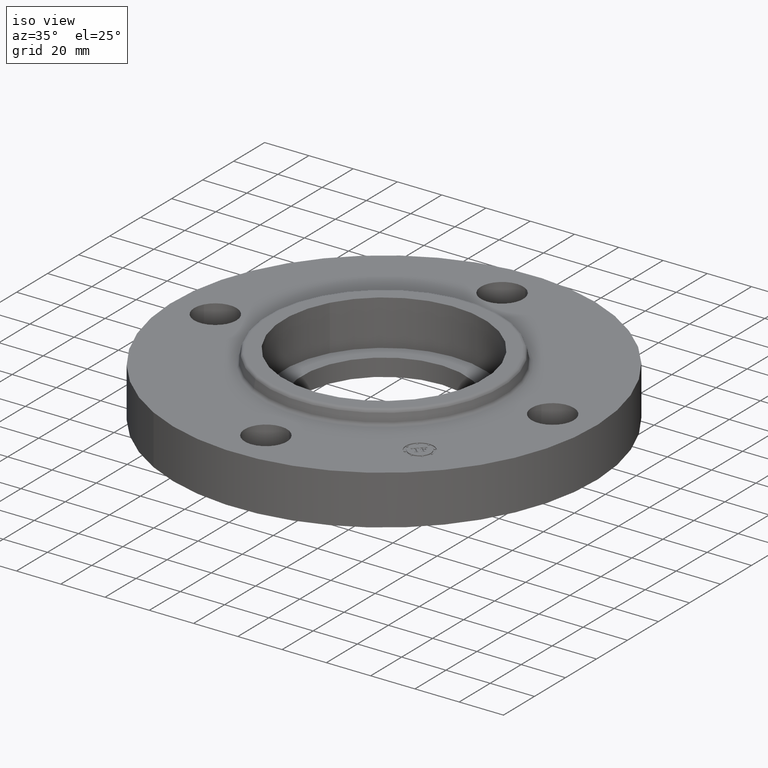
[diagram: clean part render]
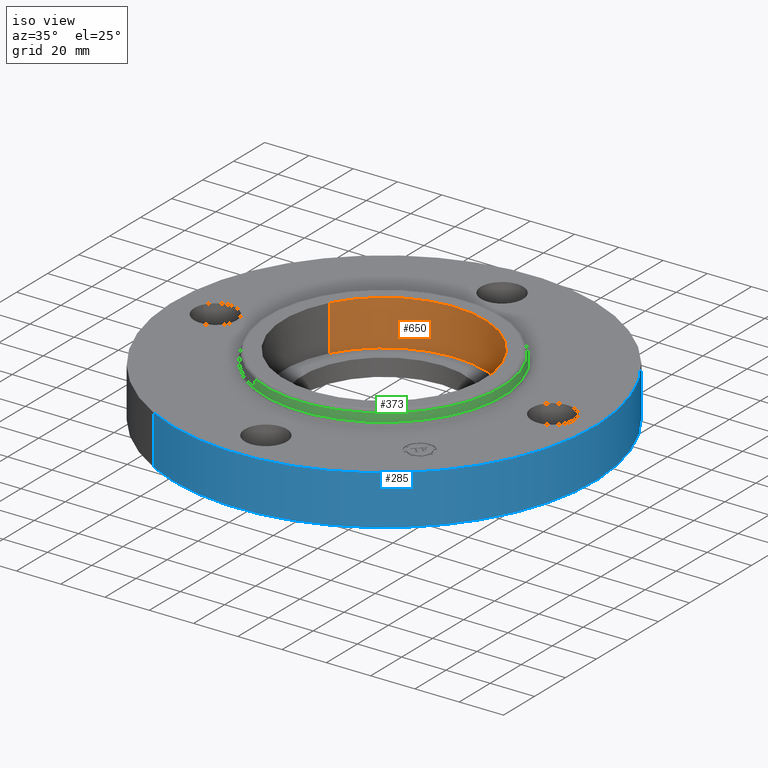
[diagram: same view with three faces highlighted in distinct colors, each labeled with its STEP entity id]
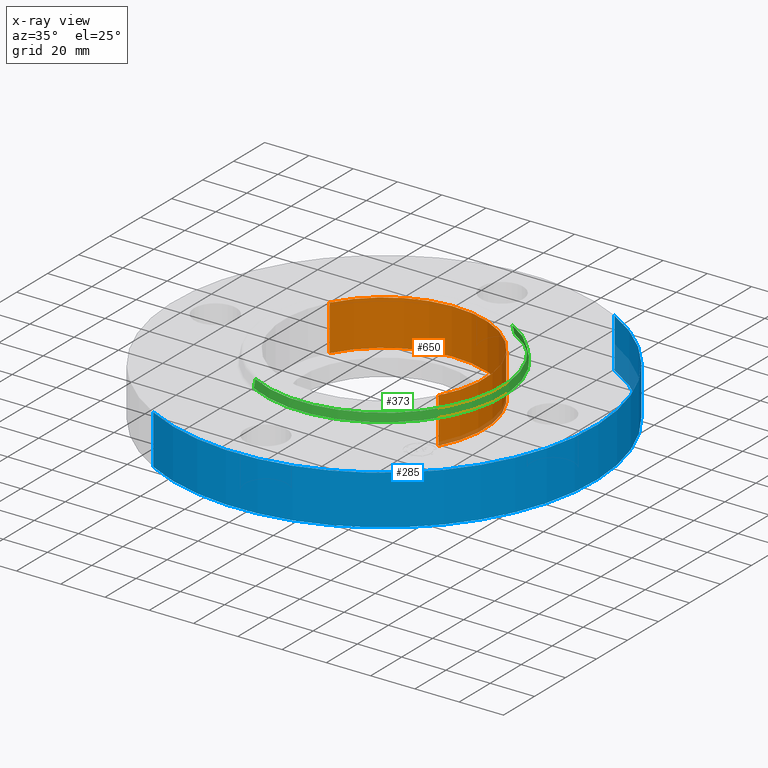
[diagram: x-ray of the same camera — body ghosted, the three highlighted faces saturated]
A machine part, iso view with three faces highlighted in distinct colors.
The next image is the same camera in x-ray (body ghosted, the three faces saturated) — at least one of them is partly hidden behind the body in this view.
Their STEP definitions:

[orange] entity #650 — the highlighted cylindrical surface (partial cylindrical patch) has radius 45.339 mm, axis along (0, 0, -1).
#42=AXIS2_PLACEMENT_3D('Circle Axis2P3D',#40,#41,$) ;
#440=AXIS2_PLACEMENT_3D('Circle Axis2P3D',#438,#439,$) ;
#632=AXIS2_PLACEMENT_3D('Cylinder Axis2P3D',#629,#630,#631) ;
#40=CARTESIAN_POINT('Axis2P3D Location',(0.,-6.99353086378E-017,0.310000000001)) ;
#44=CARTESIAN_POINT('Vertex',(-1.56648487298,0.855774586412,0.310000000001)) ;
#46=CARTESIAN_POINT('Vertex',(1.56648487298,-0.855774586412,0.310000000001)) ;
#438=CARTESIAN_POINT('Axis2P3D Location',(1.39870617276E-016,-2.79741234551E-016,1.12)) ;
#442=CARTESIAN_POINT('Vertex',(-1.56648487298,0.855774586412,1.12)) ;
#444=CARTESIAN_POINT('Vertex',(1.56648487298,-0.855774586412,1.12)) ;
#629=CARTESIAN_POINT('Axis2P3D Location',(0.,-6.99353086378E-017,1.11606299213)) ;
#634=CARTESIAN_POINT('Line Origine',(-1.56648487298,0.855774586412,0.715000000003)) ;
#639=CARTESIAN_POINT('Line Origine',(1.56648487298,-0.855774586412,0.715000000003)) ;
#41=DIRECTION('Axis2P3D Direction',(0.,0.,-0.0393700787402)) ;
#439=DIRECTION('Axis2P3D Direction',(0.,0.,-0.0393700787402)) ;
#630=DIRECTION('Axis2P3D Direction',(0.,0.,-0.0393700787402)) ;
#631=DIRECTION('Axis2P3D XDirection',(0.0345504945626,-0.0188750212049,0.)) ;
#635=DIRECTION('Vector Direction',(0.,0.,-0.0393700787402)) ;
#640=DIRECTION('Vector Direction',(0.,0.,-0.0393700787402)) ;
#636=VECTOR('Line Direction',#635,0.0393700787402) ;
#641=VECTOR('Line Direction',#640,0.0393700787402) ;
#645=ORIENTED_EDGE('',*,*,#446,.F.) ;
#646=ORIENTED_EDGE('',*,*,#638,.F.) ;
#647=ORIENTED_EDGE('',*,*,#48,.T.) ;
#648=ORIENTED_EDGE('',*,*,#643,.T.) ;
#650=ADVANCED_FACE('PartBody',(#649),#633,.F.) ;
#43=CIRCLE('generated circle',#42,1.78500000001) ;
#441=CIRCLE('generated circle',#440,1.78500000001) ;
#633=CYLINDRICAL_SURFACE('generated cylinder',#632,1.78500000001) ;
#48=EDGE_CURVE('',#45,#47,#43,.T.) ;
#446=EDGE_CURVE('',#443,#445,#441,.T.) ;
#638=EDGE_CURVE('',#45,#443,#637,.F.) ;
#643=EDGE_CURVE('',#47,#445,#642,.F.) ;
#644=EDGE_LOOP('',(#645,#646,#647,#648)) ;
#649=FACE_OUTER_BOUND('',#644,.T.) ;
#637=LINE('Line',#634,#636) ;
#642=LINE('Line',#639,#641) ;
#45=VERTEX_POINT('',#44) ;
#47=VERTEX_POINT('',#46) ;
#443=VERTEX_POINT('',#442) ;
#445=VERTEX_POINT('',#444) ;

[blue] entity #285 — the highlighted cylindrical surface (partial cylindrical patch) has radius 95.25 mm, axis along (0, 0, -1).
#159=AXIS2_PLACEMENT_3D('Circle Axis2P3D',#157,#158,$) ;
#246=AXIS2_PLACEMENT_3D('Cylinder Axis2P3D',#243,#244,#245) ;
#276=AXIS2_PLACEMENT_3D('Circle Axis2P3D',#274,#275,$) ;
#152=CARTESIAN_POINT('Vertex',(-1.79784576977,-3.2909346071,3.49676543189E-016)) ;
#154=CARTESIAN_POINT('Vertex',(1.79784576977,3.2909346071,3.49676543189E-016)) ;
#157=CARTESIAN_POINT('Axis2P3D Location',(0.,0.,0.)) ;
#243=CARTESIAN_POINT('Axis2P3D Location',(0.,0.,0.560000000002)) ;
#248=CARTESIAN_POINT('Line Origine',(-1.79784576977,-3.2909346071,0.440000000002)) ;
#252=CARTESIAN_POINT('Vertex',(-1.79784576977,-3.2909346071,0.880000000004)) ;
#259=CARTESIAN_POINT('Vertex',(1.79784576977,3.2909346071,0.880000000004)) ;
#262=CARTESIAN_POINT('Line Origine',(1.79784576977,3.2909346071,0.440000000002)) ;
#274=CARTESIAN_POINT('Axis2P3D Location',(0.,0.,0.880000000004)) ;
#158=DIRECTION('Axis2P3D Direction',(0.,0.,-0.0393700787402)) ;
#244=DIRECTION('Axis2P3D Direction',(0.,0.,-0.0393700787402)) ;
#245=DIRECTION('Axis2P3D XDirection',(0.0188750212049,0.0345504945626,0.)) ;
#249=DIRECTION('Vector Direction',(0.,0.,-0.0393700787402)) ;
#263=DIRECTION('Vector Direction',(0.,0.,-0.0393700787402)) ;
#275=DIRECTION('Axis2P3D Direction',(0.,0.,-0.0393700787402)) ;
#250=VECTOR('Line Direction',#249,0.0393700787402) ;
#264=VECTOR('Line Direction',#263,0.0393700787402) ;
#280=ORIENTED_EDGE('',*,*,#161,.F.) ;
#281=ORIENTED_EDGE('',*,*,#266,.T.) ;
#282=ORIENTED_EDGE('',*,*,#278,.T.) ;
#283=ORIENTED_EDGE('',*,*,#254,.F.) ;
#285=ADVANCED_FACE('PartBody',(#284),#247,.T.) ;
#160=CIRCLE('generated circle',#159,3.75000000002) ;
#277=CIRCLE('generated circle',#276,3.75000000002) ;
#247=CYLINDRICAL_SURFACE('generated cylinder',#246,3.75000000002) ;
#161=EDGE_CURVE('',#155,#153,#160,.T.) ;
#254=EDGE_CURVE('',#153,#253,#251,.F.) ;
#266=EDGE_CURVE('',#155,#260,#265,.F.) ;
#278=EDGE_CURVE('',#260,#253,#277,.T.) ;
#279=EDGE_LOOP('',(#280,#281,#282,#283)) ;
#284=FACE_OUTER_BOUND('',#279,.T.) ;
#251=LINE('Line',#248,#250) ;
#265=LINE('Line',#262,#264) ;
#153=VERTEX_POINT('',#152) ;
#155=VERTEX_POINT('',#154) ;
#253=VERTEX_POINT('',#252) ;
#260=VERTEX_POINT('',#259) ;

[green] entity #373 — the highlighted conical surface has half-angle 10 deg.
#309=AXIS2_PLACEMENT_3D('Circle Axis2P3D',#307,#308,$) ;
#346=AXIS2_PLACEMENT_3D('Cone Axis2P3D',#343,#344,#345) ;
#357=AXIS2_PLACEMENT_3D('Circle Axis2P3D',#355,#356,$) ;
#304=CARTESIAN_POINT('Vertex',(1.01458789785,1.85719068961,0.929581109344)) ;
#307=CARTESIAN_POINT('Axis2P3D Location',(0.,0.,0.929581109344)) ;
#311=CARTESIAN_POINT('Vertex',(-1.01458789785,-1.85719068961,0.929581109344)) ;
#343=CARTESIAN_POINT('Axis2P3D Location',(0.,0.,1.07041889066)) ;
#348=CARTESIAN_POINT('Line Origine',(1.00863499061,1.84629396601,1.)) ;
#352=CARTESIAN_POINT('Vertex',(1.00268208338,1.8353972424,1.07041889066)) ;
#355=CARTESIAN_POINT('Axis2P3D Location',(0.,0.,1.07041889066)) ;
#359=CARTESIAN_POINT('Vertex',(-1.00268208338,-1.8353972424,1.07041889066)) ;
#362=CARTESIAN_POINT('Line Origine',(-1.00863499061,-1.84629396601,1.)) ;
#308=DIRECTION('Axis2P3D Direction',(0.,0.,-0.0393700787402)) ;
#344=DIRECTION('Axis2P3D Direction',(0.,0.,-0.0393700787402)) ;
#345=DIRECTION('Axis2P3D XDirection',(-0.0188750212049,-0.0345504945626,0.)) ;
#349=DIRECTION('Vector Direction',(0.00327761303565,0.00599963041829,-0.03877195878)) ;
#356=DIRECTION('Axis2P3D Direction',(0.,0.,-0.0393700787402)) ;
#363=DIRECTION('Vector Direction',(-0.00327761303565,-0.00599963041829,-0.03877195878)) ;
#350=VECTOR('Line Direction',#349,0.0393700787402) ;
#364=VECTOR('Line Direction',#363,0.0393700787402) ;
#368=ORIENTED_EDGE('',*,*,#313,.F.) ;
#369=ORIENTED_EDGE('',*,*,#354,.T.) ;
#370=ORIENTED_EDGE('',*,*,#361,.T.) ;
#371=ORIENTED_EDGE('',*,*,#366,.F.) ;
#373=ADVANCED_FACE('PartBody',(#372),#347,.T.) ;
#310=CIRCLE('generated circle',#309,2.1162575127) ;
#358=CIRCLE('generated circle',#357,2.09142401195) ;
#347=CONICAL_SURFACE('Cone',#346,2.09142401195,0.174532925199) ;
#313=EDGE_CURVE('',#305,#312,#310,.T.) ;
#354=EDGE_CURVE('',#305,#353,#351,.F.) ;
#361=EDGE_CURVE('',#353,#360,#358,.T.) ;
#366=EDGE_CURVE('',#312,#360,#365,.F.) ;
#367=EDGE_LOOP('',(#368,#369,#370,#371)) ;
#372=FACE_OUTER_BOUND('',#367,.T.) ;
#351=LINE('Line',#348,#350) ;
#365=LINE('Line',#362,#364) ;
#305=VERTEX_POINT('',#304) ;
#312=VERTEX_POINT('',#311) ;
#353=VERTEX_POINT('',#352) ;
#360=VERTEX_POINT('',#359) ;